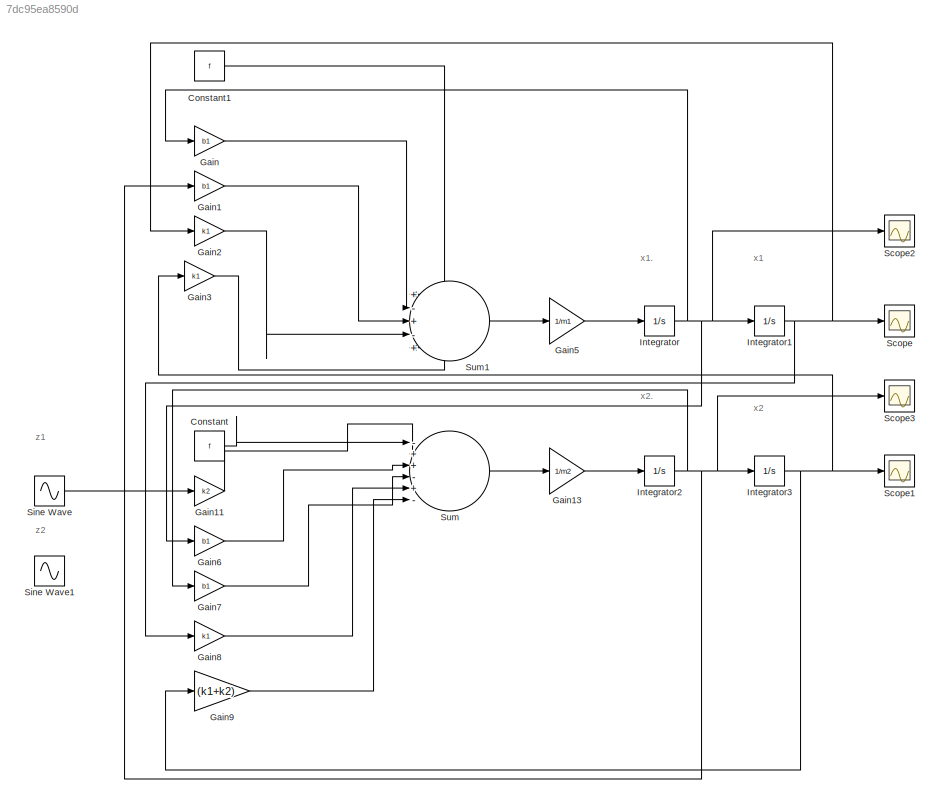
MODEL slx_7dc95ea8590d
KIND model
CONFIG AbsTol = auto
CONFIG EnableMultiTasking = off
CONFIG FixedStep = auto
CONFIG InitFcn = m1 = 290;\nb1 = 1000;\nm2 = 59;\nk1 = 16182;\nf = 0;\nk2 = 19000;\n
CONFIG MaxStep = auto
CONFIG MinStep = auto
CONFIG RelTol = 1e-3
CONFIG SampleTimeConstraint = Unconstrained
CONFIG SolverName = VariableStepAuto
CONFIG StartTime = 0.0
CONFIG StopTime = 10.0
BLOCK [Constant] Constant
  Value = f
BLOCK [Constant] Constant1
  Value = f
BLOCK [Gain] Gain
  Gain = b1
BLOCK [Gain] Gain1
  Gain = b1
BLOCK [Gain] Gain11
  Gain = k2
BLOCK [Gain] Gain13
  Gain = 1/m2
BLOCK [Gain] Gain2
  Gain = k1
BLOCK [Gain] Gain3
  Gain = k1
BLOCK [Gain] Gain5
  Gain = 1/m1
BLOCK [Gain] Gain6
  Gain = b1
BLOCK [Gain] Gain7
  Gain = b1
BLOCK [Gain] Gain8
  Gain = k1
BLOCK [Gain] Gain9
  Gain = (k1+k2)
BLOCK [Integrator] Integrator
BLOCK [Integrator] Integrator1
BLOCK [Integrator] Integrator2
BLOCK [Integrator] Integrator3
BLOCK [Scope] Scope
  ActiveDisplayYMaximum = 1
  ActiveDisplayYMinimum = -1
  Floating = off
  GraphicalSettings = {"Style":{"BackgroundColor":[0.12941176470588237,0.12941176470588237,0.12941176470588237],"AxesColor":[0.07058823529411765,0.07058823529411765,0.07058823529411765],"LabelsColor":[0.8509803921568627,0.8509803921568627,0.8509803921568627],"PreserveColors":false,"Visible":[true],"LineStyle":["-"],"LineWidth":[1.5],"BarWidth":[0.9],"LineColor":["auto"],"LineFaceAlpha":[1],"LineEdgeAlpha":[1],"Marker":...<+1904ch>  <repeated x3 — deduplicated; at blocks: Scope, Scope1, Scope3>
  MultipleDisplayCache = [{"MaxYLimMag":1,"MaxYLimReal":1,"MinYLimMag":0,"MinYLimReal":-1,"PlotAsMagnitudePhase":false,"ShowGrid":true,"ShowLegend":false,"Title":"%<SignalLabel>","YLabel":""}]
  NumInputPorts = 1
  ScopeFrameLocation = window
  WasSavedAsWebScope = on
  WindowPosition = [680.000000,330.000000,560.000000,420.000000,]
BLOCK [Scope] Scope1
  ActiveDisplayYMaximum = 0.070956552851740851
  ActiveDisplayYMinimum = -0.066392429182942844
  DataLoggingVariableName = ScopeData1
  Floating = off
  MultipleDisplayCache = [{"MaxYLimMag":0.070956552851740851,"MaxYLimReal":0.070956552851740851,"MinYLimMag":0,"MinYLimReal":-0.066392429182942844,"PlotAsMagnitudePhase":false,"ShowGrid":true,"ShowLegend":false,"Title":"%<SignalLabel>","YLabel":""}]
  NumInputPorts = 1
  ScopeFrameLocation = window
  WasSavedAsWebScope = on
  WindowPosition = [680.000000,330.000000,560.000000,420.000000,]
BLOCK [Scope] Scope2
  ActiveDisplayYMaximum = 0.16138258231429412
  ActiveDisplayYMinimum = -0.14350753834021374
  DataLoggingVariableName = ScopeData2
  Floating = off
  GraphicalSettings = {"Style":{"BackgroundColor":[0.12941176470588237,0.12941176470588237,0.12941176470588237],"AxesColor":[0.07058823529411765,0.07058823529411765,0.07058823529411765],"LabelsColor":[0.8509803921568627,0.8509803921568627,0.8509803921568627],"PreserveColors":false,"Visible":[true],"LineStyle":["-"],"LineWidth":[1.5],"BarWidth":[0.9],"LineColor":["auto"],"LineFaceAlpha":[1],"LineEdgeAlpha":[1],"Marker":...<+2010ch>
  MultipleDisplayCache = [{"MaxYLimMag":0.16138258231429412,"MaxYLimReal":0.16138258231429412,"MinYLimMag":0,"MinYLimReal":-0.14350753834021374,"PlotAsMagnitudePhase":false,"ShowGrid":true,"ShowLegend":false,"Title":"%<SignalLabel>","YLabel":""}]
  NumInputPorts = 1
  ScopeFrameLocation = window
  WasSavedAsWebScope = on
  WindowPosition = [680.000000,330.000000,560.000000,420.000000,]
BLOCK [Scope] Scope3
  ActiveDisplayYMaximum = 0.080554855938756692
  ActiveDisplayYMinimum = -0.070240527704496708
  DataLoggingVariableName = ScopeData3
  Floating = off
  MultipleDisplayCache = [{"MaxYLimMag":0.080554855938756692,"MaxYLimReal":0.080554855938756692,"MinYLimMag":0,"MinYLimReal":-0.070240527704496708,"PlotAsMagnitudePhase":false,"ShowGrid":true,"ShowLegend":false,"Title":"%<SignalLabel>","YLabel":""}]
  NumInputPorts = 1
  ScopeFrameLocation = window
  WasSavedAsWebScope = on
  WindowPosition = [680.000000,330.000000,560.000000,420.000000,]
BLOCK [Sin] Sine Wave
  Amplitude = 0.05
  Frequency = 0.5*pi
  SampleTime = 0
BLOCK [Sin] Sine Wave1
  Amplitude = 0.05
  Frequency = 20*pi
  SampleTime = 0
BLOCK [Sum] Sum
  Inputs = -++-+-
BLOCK [Sum] Sum1
  Inputs = +-+-+
ANNOTATION (root): z1
ANNOTATION (root): z2
ANNOTATION (root): x2.
ANNOTATION (root): x2
ANNOTATION (root): x1.
ANNOTATION (root): x1
LINE Constant1:1 -> Sum1:1
LINE Constant:1 -> Sum:1
LINE Gain11:1 -> Sum:2
LINE Gain13:1 -> Integrator2:1
LINE Gain1:1 -> Sum1:3
LINE Gain2:1 -> Sum1:4
LINE Gain3:1 -> Sum1:5
LINE Gain5:1 -> Integrator:1
LINE Gain6:1 -> Sum:3
LINE Gain7:1 -> Sum:4
LINE Gain8:1 -> Sum:5
LINE Gain9:1 -> Sum:6
LINE Gain:1 -> Sum1:2
NET Integrator1:1 -> Gain2:1, Gain8:1, Scope:1
NET Integrator2:1 -> Gain1:1, Gain7:1, Integrator3:1, Scope3:1
NET Integrator3:1 -> Gain3:1, Gain9:1, Scope1:1
NET Integrator:1 -> Gain6:1, Gain:1, Integrator1:1, Scope2:1
LINE Sine Wave:1 -> Gain11:1
LINE Sum1:1 -> Gain5:1
LINE Sum:1 -> Gain13:1
note: NET lines group one-source signal fan-out (src -> all destinations, sorted); 1:1 wires keep LINE
